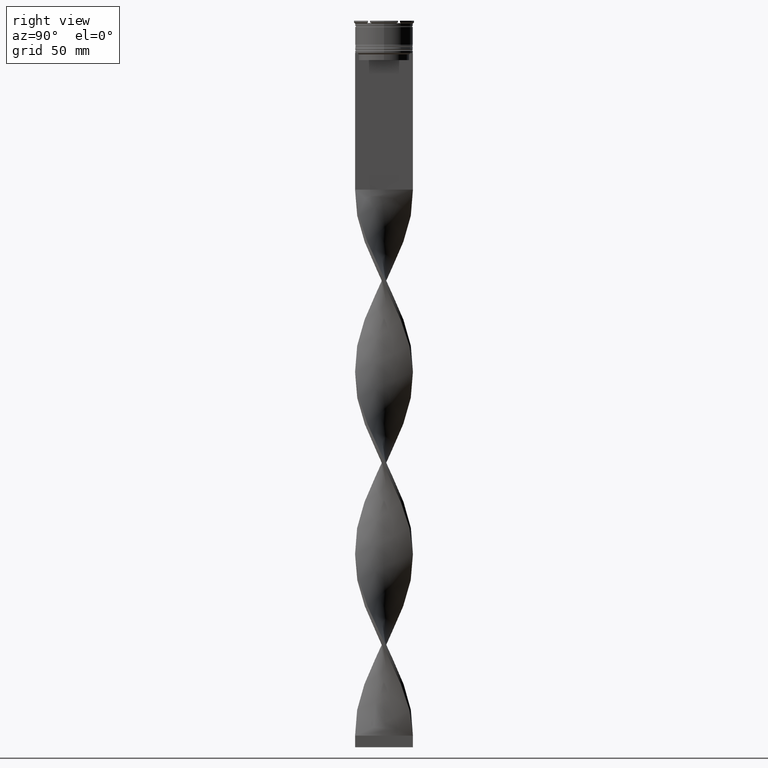
[diagram: clean part render]
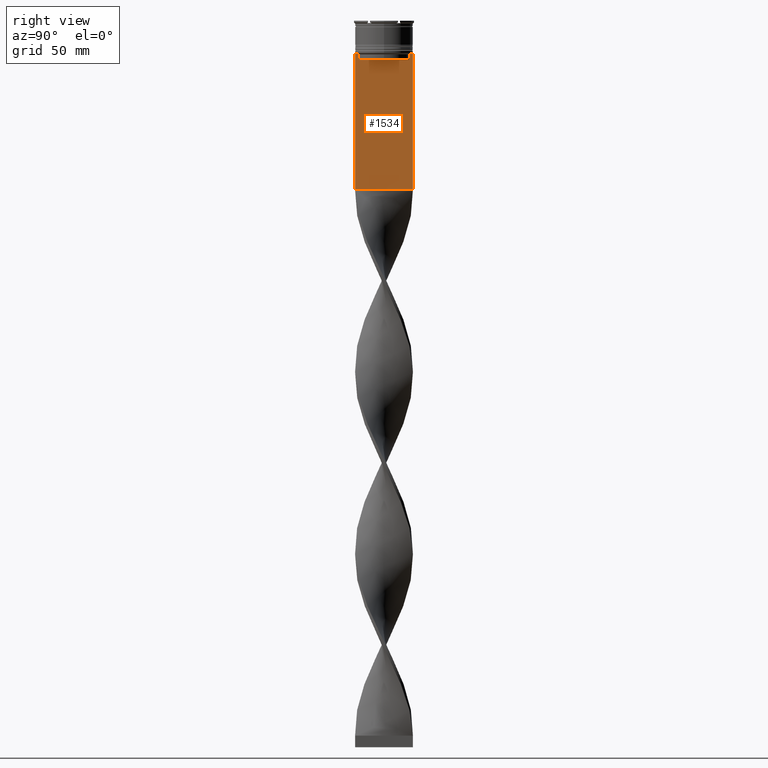
[diagram: same view with one face highlighted and labeled with its STEP entity id]
A machine part, right view. The second image highlights one B-rep face of the part: STEP entity #1534.
In plain terms, the highlighted planar face has unit normal (-1, 0, 0).
Its self-contained STEP definition (entity closure, byte-faithful):
#25 = VECTOR ( 'NONE', #4380, 1000.000000000000000 ) ;
#57 = PLANE ( 'NONE',  #3309 ) ;
#111 = VECTOR ( 'NONE', #2568, 1000.000000000000000 ) ;
#149 = CARTESIAN_POINT ( 'NONE',  ( 0.7500000000000002220, 12.37729776647553059, -14.00000000000000178 ) ) ;
#194 = VECTOR ( 'NONE', #1973, 1000.000000000000000 ) ;
#215 = LINE ( 'NONE', #1610, #25 ) ;
#252 = CARTESIAN_POINT ( 'NONE',  ( 0.7500000000000002220, -12.50000000000000000, -14.00000000000000178 ) ) ;
#394 = CARTESIAN_POINT ( 'NONE',  ( 0.7500000000000002220, -10.87416663473574197, -14.50000000000000000 ) ) ;
#398 = VERTEX_POINT ( 'NONE', #149 ) ;
#470 = VERTEX_POINT ( 'NONE', #2618 ) ;
#494 = ORIENTED_EDGE ( 'NONE', *, *, #3159, .T. ) ;
#512 = VERTEX_POINT ( 'NONE', #2684 ) ;
#547 = ORIENTED_EDGE ( 'NONE', *, *, #4484, .T. ) ;
#592 = VERTEX_POINT ( 'NONE', #3433 ) ;
#614 = LINE ( 'NONE', #958, #194 ) ;
#631 = CARTESIAN_POINT ( 'NONE',  ( 0.7500000000000002220, 12.50000000000000000, -14.00000000000000178 ) ) ;
#711 = CARTESIAN_POINT ( 'NONE',  ( 0.7500000000000002220, -12.50000000000000000, 11.04495957273638673 ) ) ;
#767 = VECTOR ( 'NONE', #2666, 1000.000000000000000 ) ;
#814 = DIRECTION ( 'NONE',  ( -0.000000000000000000, -0.000000000000000000, 1.000000000000000000 ) ) ;
#840 = ORIENTED_EDGE ( 'NONE', *, *, #2625, .T. ) ;
#871 = DIRECTION ( 'NONE',  ( 0.000000000000000000, -1.000000000000000000, 0.000000000000000000 ) ) ;
#908 = VERTEX_POINT ( 'NONE', #1830 ) ;
#914 = CARTESIAN_POINT ( 'NONE',  ( 0.7500000000000002220, -11.04122051801870441, -14.33334204001847567 ) ) ;
#932 = B_SPLINE_CURVE_WITH_KNOTS ( 'NONE', 3,
 ( #1647, #914, #981, #3312 ),
 .UNSPECIFIED., .F., .F.,
 ( 4, 4 ),
 ( 0.05009718908159448147, 0.05081156920313959630 ),
 .UNSPECIFIED. ) ;
#958 = CARTESIAN_POINT ( 'NONE',  ( 0.7500000000000002220, 12.50000000000000000, 11.04495957273638673 ) ) ;
#981 = CARTESIAN_POINT ( 'NONE',  ( 0.7500000000000002220, -11.20826532207830439, -14.16667499063191826 ) ) ;
#1005 = LINE ( 'NONE', #1694, #4179 ) ;
#1030 = ORIENTED_EDGE ( 'NONE', *, *, #1970, .T. ) ;
#1036 = EDGE_CURVE ( 'NONE', #3740, #592, #215, .T. ) ;
#1191 = LINE ( 'NONE', #3912, #111 ) ;
#1374 = LINE ( 'NONE', #2426, #2018 ) ;
#1451 = VERTEX_POINT ( 'NONE', #394 ) ;
#1534 = ADVANCED_FACE ( 'NONE', ( #3503 ), #57, .F. ) ;
#1574 = VECTOR ( 'NONE', #3255, 1000.000000000000000 ) ;
#1610 = CARTESIAN_POINT ( 'NONE',  ( 0.7500000000000002220, 10.90000000000000213, -17.00000000000000000 ) ) ;
#1635 = CARTESIAN_POINT ( 'NONE',  ( 0.7500000000000002220, -11.37530219378809093, -14.00000000000000178 ) ) ;
#1642 = B_SPLINE_CURVE_WITH_KNOTS ( 'NONE', 3,
 ( #3079, #4114, #3734, #2691 ),
 .UNSPECIFIED., .F., .F.,
 ( 4, 4 ),
 ( 0.01936090553552769281, 0.02006881572333104116 ),
 .UNSPECIFIED. ) ;
#1643 = VECTOR ( 'NONE', #814, 1000.000000000000000 ) ;
#1647 = CARTESIAN_POINT ( 'NONE',  ( 0.7500000000000002220, -10.87416663473574197, -14.50000000000000000 ) ) ;
#1684 = VERTEX_POINT ( 'NONE', #3622 ) ;
#1694 = CARTESIAN_POINT ( 'NONE',  ( 0.7500000000000002220, -12.50000000000000000, 11.04495957273638673 ) ) ;
#1830 = CARTESIAN_POINT ( 'NONE',  ( 0.7500000000000002220, 11.37530219378809093, -14.00000000000000178 ) ) ;
#1858 = DIRECTION ( 'NONE',  ( 0.000000000000000000, -1.000000000000000000, 0.000000000000000000 ) ) ;
#1970 = EDGE_CURVE ( 'NONE', #3578, #1684, #1005, .T. ) ;
#1973 = DIRECTION ( 'NONE',  ( 0.000000000000000000, 0.000000000000000000, -1.000000000000000000 ) ) ;
#2018 = VECTOR ( 'NONE', #1858, 1000.000000000000000 ) ;
#2193 = ORIENTED_EDGE ( 'NONE', *, *, #4146, .F. ) ;
#2245 = EDGE_CURVE ( 'NONE', #592, #1451, #3081, .T. ) ;
#2257 = LINE ( 'NONE', #2548, #1574 ) ;
#2265 = CARTESIAN_POINT ( 'NONE',  ( 0.7500000000000002220, 10.87416663473574197, -14.50000000000000000 ) ) ;
#2335 = ORIENTED_EDGE ( 'NONE', *, *, #3790, .T. ) ;
#2387 = LINE ( 'NONE', #252, #3837 ) ;
#2426 = CARTESIAN_POINT ( 'NONE',  ( 0.7500000000000002220, -12.50000000000000000, -14.00000000000000178 ) ) ;
#2465 = EDGE_CURVE ( 'NONE', #3784, #470, #4019, .T. ) ;
#2518 = VECTOR ( 'NONE', #871, 1000.000000000000000 ) ;
#2548 = CARTESIAN_POINT ( 'NONE',  ( 0.7500000000000002220, 10.87416663473574197, 0.000000000000000000 ) ) ;
#2568 = DIRECTION ( 'NONE',  ( 0.000000000000000000, 1.000000000000000000, 0.000000000000000000 ) ) ;
#2618 = CARTESIAN_POINT ( 'NONE',  ( 0.7500000000000002220, -12.37729776647553059, -14.00000000000000178 ) ) ;
#2625 = EDGE_CURVE ( 'NONE', #3766, #3740, #2257, .T. ) ;
#2666 = DIRECTION ( 'NONE',  ( 0.000000000000000000, -1.000000000000000000, 0.000000000000000000 ) ) ;
#2684 = CARTESIAN_POINT ( 'NONE',  ( 0.7500000000000002220, 12.50000000000000000, -73.00000000000001421 ) ) ;
#2691 = CARTESIAN_POINT ( 'NONE',  ( 0.7500000000000002220, 10.87416663473574197, -14.50000000000000000 ) ) ;
#2735 = CARTESIAN_POINT ( 'NONE',  ( 0.7500000000000002220, -10.87416663473574197, 0.000000000000000000 ) ) ;
#2737 = EDGE_CURVE ( 'NONE', #1684, #512, #1191, .T. ) ;
#3044 = DIRECTION ( 'NONE',  ( 0.000000000000000000, -1.000000000000000000, 0.000000000000000000 ) ) ;
#3079 = CARTESIAN_POINT ( 'NONE',  ( 0.7500000000000002220, 11.37530219378809093, -14.00000000000000178 ) ) ;
#3081 = LINE ( 'NONE', #2735, #1643 ) ;
#3159 = EDGE_CURVE ( 'NONE', #470, #3578, #1374, .T. ) ;
#3232 = EDGE_LOOP ( 'NONE', ( #547, #2335, #840, #3786, #3283, #3443, #4226, #494, #1030, #3956, #2193, #4048 ) ) ;
#3255 = DIRECTION ( 'NONE',  ( 0.000000000000000000, 0.000000000000000000, -1.000000000000000000 ) ) ;
#3283 = ORIENTED_EDGE ( 'NONE', *, *, #2245, .T. ) ;
#3309 = AXIS2_PLACEMENT_3D ( 'NONE', #711, #3523, #3550 ) ;
#3312 = CARTESIAN_POINT ( 'NONE',  ( 0.7500000000000002220, -11.37530219378809093, -14.00000000000000178 ) ) ;
#3433 = CARTESIAN_POINT ( 'NONE',  ( 0.7500000000000002220, -10.87416663473574019, -17.00000000000000000 ) ) ;
#3443 = ORIENTED_EDGE ( 'NONE', *, *, #4283, .T. ) ;
#3503 = FACE_OUTER_BOUND ( 'NONE', #3232, .T. ) ;
#3523 = DIRECTION ( 'NONE',  ( -1.000000000000000000, 0.000000000000000000, 0.000000000000000000 ) ) ;
#3550 = DIRECTION ( 'NONE',  ( 0.000000000000000000, 0.000000000000000000, 1.000000000000000000 ) ) ;
#3578 = VERTEX_POINT ( 'NONE', #4483 ) ;
#3622 = CARTESIAN_POINT ( 'NONE',  ( 0.7500000000000002220, -12.50000000000000000, -73.00000000000001421 ) ) ;
#3661 = CARTESIAN_POINT ( 'NONE',  ( 0.7500000000000002220, -12.50000000000000000, -14.00000000000000178 ) ) ;
#3695 = LINE ( 'NONE', #4471, #767 ) ;
#3734 = CARTESIAN_POINT ( 'NONE',  ( 0.7500000000000002220, 11.04122051153452055, -14.33334204648729404 ) ) ;
#3740 = VERTEX_POINT ( 'NONE', #4162 ) ;
#3766 = VERTEX_POINT ( 'NONE', #2265 ) ;
#3772 = VERTEX_POINT ( 'NONE', #631 ) ;
#3784 = VERTEX_POINT ( 'NONE', #1635 ) ;
#3786 = ORIENTED_EDGE ( 'NONE', *, *, #1036, .T. ) ;
#3790 = EDGE_CURVE ( 'NONE', #908, #3766, #1642, .T. ) ;
#3837 = VECTOR ( 'NONE', #3044, 1000.000000000000000 ) ;
#3912 = CARTESIAN_POINT ( 'NONE',  ( 0.7500000000000002220, -12.50000000000000000, -73.00000000000001421 ) ) ;
#3956 = ORIENTED_EDGE ( 'NONE', *, *, #2737, .T. ) ;
#4019 = LINE ( 'NONE', #3661, #2518 ) ;
#4048 = ORIENTED_EDGE ( 'NONE', *, *, #4307, .T. ) ;
#4114 = CARTESIAN_POINT ( 'NONE',  ( 0.7500000000000002220, 11.20826531587977648, -14.16667499681701514 ) ) ;
#4145 = DIRECTION ( 'NONE',  ( 0.000000000000000000, 0.000000000000000000, -1.000000000000000000 ) ) ;
#4146 = EDGE_CURVE ( 'NONE', #3772, #512, #614, .T. ) ;
#4162 = CARTESIAN_POINT ( 'NONE',  ( 0.7500000000000002220, 10.87416663473574019, -17.00000000000000000 ) ) ;
#4179 = VECTOR ( 'NONE', #4145, 1000.000000000000000 ) ;
#4226 = ORIENTED_EDGE ( 'NONE', *, *, #2465, .T. ) ;
#4283 = EDGE_CURVE ( 'NONE', #1451, #3784, #932, .T. ) ;
#4307 = EDGE_CURVE ( 'NONE', #3772, #398, #2387, .T. ) ;
#4380 = DIRECTION ( 'NONE',  ( 0.000000000000000000, -1.000000000000000000, 0.000000000000000000 ) ) ;
#4471 = CARTESIAN_POINT ( 'NONE',  ( 0.7500000000000002220, -12.50000000000000000, -14.00000000000000178 ) ) ;
#4483 = CARTESIAN_POINT ( 'NONE',  ( 0.7500000000000002220, -12.50000000000000000, -14.00000000000000178 ) ) ;
#4484 = EDGE_CURVE ( 'NONE', #398, #908, #3695, .T. ) ;